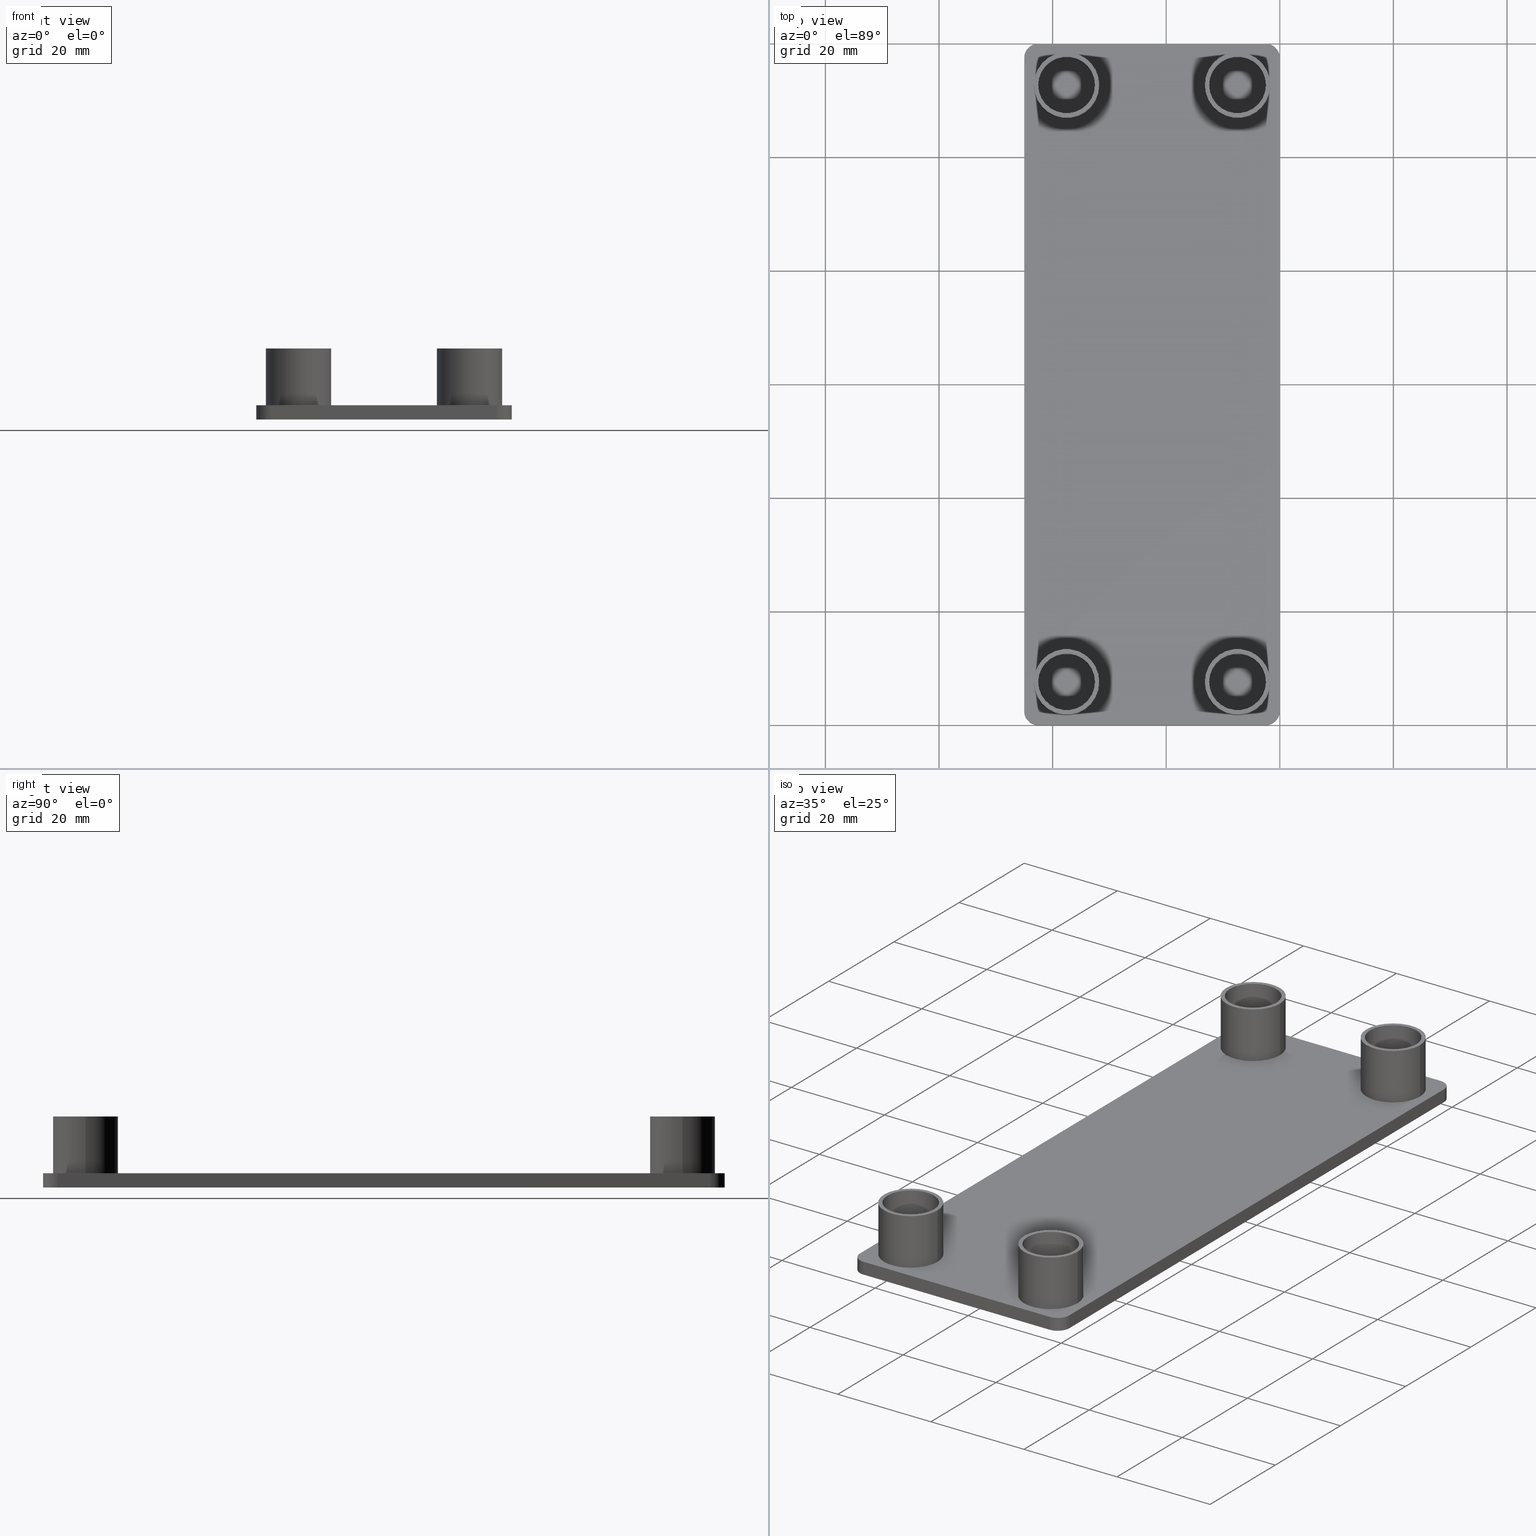
[diagram: canonical four-view strip — front | top / right | iso, engineering-drawing reading convention]
A machine part, canonical four-view strip (front | top / right | iso — engineering-drawing reading convention). The complete STEP part file that produces these views, byte-faithful:
ISO-10303-21;
HEADER;
/****************************************************************
 * Generated by software with PDE/Lib inside                    *
 * PDElib Version v4.4, created Mon 02/23/2004                  *
 * International Technegroup Inc. (www.iti-oh.com)              *
 ****************************************************************/
FILE_DESCRIPTION(('STEP AP203'),'2;1');
FILE_NAME('18.063.00.stp','2011-03-07T08:33:51',(''),(''),'2009.3.110','THINKDESIGN','');
FILE_SCHEMA(('CONFIG_CONTROL_DESIGN'));
ENDSEC;
DATA;
#2=CARTESIAN_POINT('',(-49.499975822407123,-72.000025978629537,0.0));
#3=DIRECTION('',(0.0,0.0,1.0));
#4=DIRECTION('',(1.0,0.0,0.0));
#5=AXIS2_PLACEMENT_3D('',#2,#3,#4);
#6=PLANE('',#5);
#7=CARTESIAN_POINT('',(-12.449998999949923,-52.550044499789919,0.0));
#8=VERTEX_POINT('',#7);
#9=CARTESIAN_POINT('',(-2.449998999989930,-52.550044499789919,0.0));
#10=VERTEX_POINT('',#9);
#11=CARTESIAN_POINT('',(-7.449998999969921,-52.550044499789919,0.0));
#12=DIRECTION('',(0.0,0.0,-1.0));
#13=DIRECTION('',(1.0,0.0,0.0));
#14=AXIS2_PLACEMENT_3D('',#11,#12,#13);
#15=CIRCLE('',#14,4.999999999980001);
#16=EDGE_CURVE('',#8,#10,#15,.T.);
#17=ORIENTED_EDGE('',*,*,#16,.F.);
#18=CARTESIAN_POINT('',(-7.449998999969921,-52.550044499789919,0.0));
#19=DIRECTION('',(0.0,0.0,-1.0));
#20=DIRECTION('',(1.0,0.0,0.0));
#21=AXIS2_PLACEMENT_3D('',#18,#19,#20);
#22=CIRCLE('',#21,4.999999999980001);
#23=EDGE_CURVE('',#10,#8,#22,.T.);
#24=ORIENTED_EDGE('',*,*,#23,.F.);
#25=EDGE_LOOP('',(#17,#24));
#26=FACE_OUTER_BOUND('',#25,.T.);
#27=ADVANCED_FACE('',(#26),#6,.T.);
#28=CARTESIAN_POINT('',(-49.499975822407123,-72.000025978629537,0.0));
#29=DIRECTION('',(0.0,0.0,1.0));
#30=DIRECTION('',(1.0,0.0,0.0));
#31=AXIS2_PLACEMENT_3D('',#28,#29,#30);
#32=PLANE('',#31);
#33=CARTESIAN_POINT('',(-42.549998999829320,-52.550044499789919,0.0));
#34=VERTEX_POINT('',#33);
#35=CARTESIAN_POINT('',(-32.549998999869331,-52.550044499789919,0.0));
#36=VERTEX_POINT('',#35);
#37=CARTESIAN_POINT('',(-37.549998999849322,-52.550044499789919,0.0));
#38=DIRECTION('',(0.0,0.0,-1.0));
#39=DIRECTION('',(1.0,0.0,0.0));
#40=AXIS2_PLACEMENT_3D('',#37,#38,#39);
#41=CIRCLE('',#40,4.999999999980001);
#42=EDGE_CURVE('',#34,#36,#41,.T.);
#43=ORIENTED_EDGE('',*,*,#42,.F.);
#44=CARTESIAN_POINT('',(-37.549998999849322,-52.550044499789919,0.0));
#45=DIRECTION('',(0.0,0.0,-1.0));
#46=DIRECTION('',(1.0,0.0,0.0));
#47=AXIS2_PLACEMENT_3D('',#44,#45,#46);
#48=CIRCLE('',#47,4.999999999980001);
#49=EDGE_CURVE('',#36,#34,#48,.T.);
#50=ORIENTED_EDGE('',*,*,#49,.F.);
#51=EDGE_LOOP('',(#43,#50));
#52=FACE_OUTER_BOUND('',#51,.T.);
#53=ADVANCED_FACE('',(#52),#32,.T.);
#54=CARTESIAN_POINT('',(-49.499975822407123,-72.000025978629537,0.0));
#55=DIRECTION('',(0.0,0.0,1.0));
#56=DIRECTION('',(1.0,0.0,0.0));
#57=AXIS2_PLACEMENT_3D('',#54,#55,#56);
#58=PLANE('',#57);
#59=CARTESIAN_POINT('',(-12.450000666619427,52.550000499789803,0.0));
#60=VERTEX_POINT('',#59);
#61=CARTESIAN_POINT('',(-2.450000666659435,52.550000499789803,0.0));
#62=VERTEX_POINT('',#61);
#63=CARTESIAN_POINT('',(-7.450000666639426,52.550000499789803,0.0));
#64=DIRECTION('',(0.0,0.0,-1.0));
#65=DIRECTION('',(1.0,0.0,0.0));
#66=AXIS2_PLACEMENT_3D('',#63,#64,#65);
#67=CIRCLE('',#66,4.999999999980001);
#68=EDGE_CURVE('',#60,#62,#67,.T.);
#69=ORIENTED_EDGE('',*,*,#68,.F.);
#70=CARTESIAN_POINT('',(-7.450000666639426,52.550000499789803,0.0));
#71=DIRECTION('',(0.0,0.0,-1.0));
#72=DIRECTION('',(1.0,0.0,0.0));
#73=AXIS2_PLACEMENT_3D('',#70,#71,#72);
#74=CIRCLE('',#73,4.999999999980001);
#75=EDGE_CURVE('',#62,#60,#74,.T.);
#76=ORIENTED_EDGE('',*,*,#75,.F.);
#77=EDGE_LOOP('',(#69,#76));
#78=FACE_OUTER_BOUND('',#77,.T.);
#79=ADVANCED_FACE('',(#78),#58,.T.);
#80=CARTESIAN_POINT('',(-49.499975822407123,-72.000025978629537,0.0));
#81=DIRECTION('',(0.0,0.0,1.0));
#82=DIRECTION('',(1.0,0.0,0.0));
#83=AXIS2_PLACEMENT_3D('',#80,#81,#82);
#84=PLANE('',#83);
#85=CARTESIAN_POINT('',(-42.550000666498825,52.550045499789803,0.0));
#86=VERTEX_POINT('',#85);
#87=CARTESIAN_POINT('',(-32.550000666538836,52.550045499789803,0.0));
#88=VERTEX_POINT('',#87);
#89=CARTESIAN_POINT('',(-37.550000666518827,52.550045499789803,0.0));
#90=DIRECTION('',(0.0,0.0,-1.0));
#91=DIRECTION('',(1.0,0.0,0.0));
#92=AXIS2_PLACEMENT_3D('',#89,#90,#91);
#93=CIRCLE('',#92,4.999999999980001);
#94=EDGE_CURVE('',#86,#88,#93,.T.);
#95=ORIENTED_EDGE('',*,*,#94,.F.);
#96=CARTESIAN_POINT('',(-37.550000666518827,52.550045499789803,0.0));
#97=DIRECTION('',(0.0,0.0,-1.0));
#98=DIRECTION('',(1.0,0.0,0.0));
#99=AXIS2_PLACEMENT_3D('',#96,#97,#98);
#100=CIRCLE('',#99,4.999999999980001);
#101=EDGE_CURVE('',#88,#86,#100,.T.);
#102=ORIENTED_EDGE('',*,*,#101,.F.);
#103=EDGE_LOOP('',(#95,#102));
#104=FACE_OUTER_BOUND('',#103,.T.);
#105=ADVANCED_FACE('',(#104),#84,.T.);
#106=CARTESIAN_POINT('',(-37.550000666518827,52.550045499789803,0.0));
#107=DIRECTION('',(0.0,0.0,1.0));
#108=DIRECTION('',(1.0,0.0,0.0));
#109=AXIS2_PLACEMENT_3D('',#106,#107,#108);
#110=CYLINDRICAL_SURFACE('',#109,5.749999999977001);
#111=CARTESIAN_POINT('',(-43.300000666495826,52.550045499789803,10.0));
#112=VERTEX_POINT('',#111);
#113=CARTESIAN_POINT('',(-31.800000666542019,52.550045499789803,10.0));
#114=VERTEX_POINT('',#113);
#115=CARTESIAN_POINT('',(-37.550000666518827,52.550045499789803,10.0));
#116=DIRECTION('',(0.0,0.0,1.0));
#117=DIRECTION('',(1.0,0.0,0.0));
#118=AXIS2_PLACEMENT_3D('',#115,#116,#117);
#119=CIRCLE('',#118,5.749999999977001);
#120=EDGE_CURVE('',#112,#114,#119,.T.);
#121=ORIENTED_EDGE('',*,*,#120,.F.);
#122=CARTESIAN_POINT('',(-37.550000666518827,52.550045499789803,10.0));
#123=DIRECTION('',(0.0,0.0,1.0));
#124=DIRECTION('',(1.0,0.0,0.0));
#125=AXIS2_PLACEMENT_3D('',#122,#123,#124);
#126=CIRCLE('',#125,5.749999999977001);
#127=EDGE_CURVE('',#114,#112,#126,.T.);
#128=ORIENTED_EDGE('',*,*,#127,.F.);
#129=CARTESIAN_POINT('',(-31.800000666542019,52.550045499789803,0.0));
#130=VERTEX_POINT('',#129);
#131=CARTESIAN_POINT('',(-31.800000666542019,52.550045499789803,0.0));
#132=DIRECTION('',(0.0,0.0,1.0));
#133=VECTOR('',#132,10.0);
#134=LINE('',#131,#133);
#135=EDGE_CURVE('',#130,#114,#134,.T.);
#136=ORIENTED_EDGE('',*,*,#135,.F.);
#137=CARTESIAN_POINT('',(-43.300000666495826,52.550045499789803,0.0));
#138=VERTEX_POINT('',#137);
#139=CARTESIAN_POINT('',(-37.550000666518827,52.550045499789803,0.0));
#140=DIRECTION('',(0.0,0.0,1.0));
#141=DIRECTION('',(1.0,0.0,0.0));
#142=AXIS2_PLACEMENT_3D('',#139,#140,#141);
#143=CIRCLE('',#142,5.749999999977001);
#144=EDGE_CURVE('',#130,#138,#143,.T.);
#145=ORIENTED_EDGE('',*,*,#144,.T.);
#146=CARTESIAN_POINT('',(-37.550000666518827,52.550045499789803,0.0));
#147=DIRECTION('',(0.0,0.0,1.0));
#148=DIRECTION('',(1.0,0.0,0.0));
#149=AXIS2_PLACEMENT_3D('',#146,#147,#148);
#150=CIRCLE('',#149,5.749999999977001);
#151=EDGE_CURVE('',#138,#130,#150,.T.);
#152=ORIENTED_EDGE('',*,*,#151,.T.);
#153=ORIENTED_EDGE('',*,*,#135,.T.);
#154=EDGE_LOOP('',(#121,#128,#136,#145,#152,#153));
#155=FACE_OUTER_BOUND('',#154,.T.);
#156=ADVANCED_FACE('',(#155),#110,.T.);
#157=CARTESIAN_POINT('',(-37.550000666518827,52.550045499789803,0.0));
#158=DIRECTION('',(0.0,0.0,-1.0));
#159=DIRECTION('',(1.0,-2.449294E-016,0.0));
#160=AXIS2_PLACEMENT_3D('',#157,#158,#159);
#161=CYLINDRICAL_SURFACE('',#160,4.999999999980001);
#162=CARTESIAN_POINT('',(-42.550000666498825,52.550045499789803,10.0));
#163=VERTEX_POINT('',#162);
#164=CARTESIAN_POINT('',(-32.550000666538836,52.550045499789803,10.0));
#165=VERTEX_POINT('',#164);
#166=CARTESIAN_POINT('',(-37.550000666518827,52.550045499789803,10.0));
#167=DIRECTION('',(0.0,0.0,-1.0));
#168=DIRECTION('',(1.0,0.0,0.0));
#169=AXIS2_PLACEMENT_3D('',#166,#167,#168);
#170=CIRCLE('',#169,4.999999999980001);
#171=EDGE_CURVE('',#163,#165,#170,.T.);
#172=ORIENTED_EDGE('',*,*,#171,.F.);
#173=CARTESIAN_POINT('',(-37.550000666518827,52.550045499789803,10.0));
#174=DIRECTION('',(0.0,0.0,-1.0));
#175=DIRECTION('',(1.0,0.0,0.0));
#176=AXIS2_PLACEMENT_3D('',#173,#174,#175);
#177=CIRCLE('',#176,4.999999999980001);
#178=EDGE_CURVE('',#165,#163,#177,.T.);
#179=ORIENTED_EDGE('',*,*,#178,.F.);
#180=CARTESIAN_POINT('',(-32.550000666538836,52.550045499789803,0.0));
#181=DIRECTION('',(0.0,0.0,1.0));
#182=VECTOR('',#181,10.0);
#183=LINE('',#180,#182);
#184=EDGE_CURVE('',#88,#165,#183,.T.);
#185=ORIENTED_EDGE('',*,*,#184,.F.);
#186=ORIENTED_EDGE('',*,*,#101,.T.);
#187=ORIENTED_EDGE('',*,*,#94,.T.);
#188=ORIENTED_EDGE('',*,*,#184,.T.);
#189=EDGE_LOOP('',(#172,#179,#185,#186,#187,#188));
#190=FACE_OUTER_BOUND('',#189,.T.);
#191=ADVANCED_FACE('',(#190),#161,.F.);
#192=CARTESIAN_POINT('',(-44.450005391058767,45.650040775278057,10.0));
#193=DIRECTION('',(0.0,0.0,1.0));
#194=DIRECTION('',(1.0,0.0,0.0));
#195=AXIS2_PLACEMENT_3D('',#192,#193,#194);
#196=PLANE('',#195);
#197=ORIENTED_EDGE('',*,*,#127,.T.);
#198=ORIENTED_EDGE('',*,*,#120,.T.);
#199=EDGE_LOOP('',(#197,#198));
#200=FACE_OUTER_BOUND('',#199,.T.);
#201=ORIENTED_EDGE('',*,*,#178,.T.);
#202=ORIENTED_EDGE('',*,*,#171,.T.);
#203=EDGE_LOOP('',(#201,#202));
#204=FACE_BOUND('',#203,.T.);
#205=ADVANCED_FACE('',(#200,#204),#196,.T.);
#206=CARTESIAN_POINT('',(-7.450000666639426,52.550000499789803,0.0));
#207=DIRECTION('',(0.0,0.0,1.0));
#208=DIRECTION('',(1.0,0.0,0.0));
#209=AXIS2_PLACEMENT_3D('',#206,#207,#208);
#210=CYLINDRICAL_SURFACE('',#209,5.749999999977001);
#211=CARTESIAN_POINT('',(-13.200000666616425,52.550000499789803,10.0));
#212=VERTEX_POINT('',#211);
#213=CARTESIAN_POINT('',(-1.700000666662618,52.550000499789803,10.0));
#214=VERTEX_POINT('',#213);
#215=CARTESIAN_POINT('',(-7.450000666639426,52.550000499789803,10.0));
#216=DIRECTION('',(0.0,0.0,1.0));
#217=DIRECTION('',(1.0,0.0,0.0));
#218=AXIS2_PLACEMENT_3D('',#215,#216,#217);
#219=CIRCLE('',#218,5.749999999977001);
#220=EDGE_CURVE('',#212,#214,#219,.T.);
#221=ORIENTED_EDGE('',*,*,#220,.F.);
#222=CARTESIAN_POINT('',(-7.450000666639426,52.550000499789803,10.0));
#223=DIRECTION('',(0.0,0.0,1.0));
#224=DIRECTION('',(1.0,0.0,0.0));
#225=AXIS2_PLACEMENT_3D('',#222,#223,#224);
#226=CIRCLE('',#225,5.749999999977001);
#227=EDGE_CURVE('',#214,#212,#226,.T.);
#228=ORIENTED_EDGE('',*,*,#227,.F.);
#229=CARTESIAN_POINT('',(-1.700000666662618,52.550000499789803,0.0));
#230=VERTEX_POINT('',#229);
#231=CARTESIAN_POINT('',(-1.700000666662618,52.550000499789803,0.0));
#232=DIRECTION('',(0.0,0.0,1.0));
#233=VECTOR('',#232,10.0);
#234=LINE('',#231,#233);
#235=EDGE_CURVE('',#230,#214,#234,.T.);
#236=ORIENTED_EDGE('',*,*,#235,.F.);
#237=CARTESIAN_POINT('',(-13.200000666616425,52.550000499789803,0.0));
#238=VERTEX_POINT('',#237);
#239=CARTESIAN_POINT('',(-7.450000666639426,52.550000499789803,0.0));
#240=DIRECTION('',(0.0,0.0,1.0));
#241=DIRECTION('',(1.0,0.0,0.0));
#242=AXIS2_PLACEMENT_3D('',#239,#240,#241);
#243=CIRCLE('',#242,5.749999999977001);
#244=EDGE_CURVE('',#230,#238,#243,.T.);
#245=ORIENTED_EDGE('',*,*,#244,.T.);
#246=CARTESIAN_POINT('',(-7.450000666639426,52.550000499789803,0.0));
#247=DIRECTION('',(0.0,0.0,1.0));
#248=DIRECTION('',(1.0,0.0,0.0));
#249=AXIS2_PLACEMENT_3D('',#246,#247,#248);
#250=CIRCLE('',#249,5.749999999977001);
#251=EDGE_CURVE('',#238,#230,#250,.T.);
#252=ORIENTED_EDGE('',*,*,#251,.T.);
#253=ORIENTED_EDGE('',*,*,#235,.T.);
#254=EDGE_LOOP('',(#221,#228,#236,#245,#252,#253));
#255=FACE_OUTER_BOUND('',#254,.T.);
#256=ADVANCED_FACE('',(#255),#210,.T.);
#257=CARTESIAN_POINT('',(-7.450000666639426,52.550000499789803,0.0));
#258=DIRECTION('',(0.0,0.0,-1.0));
#259=DIRECTION('',(1.0,-2.449294E-016,0.0));
#260=AXIS2_PLACEMENT_3D('',#257,#258,#259);
#261=CYLINDRICAL_SURFACE('',#260,4.999999999980001);
#262=CARTESIAN_POINT('',(-12.450000666619427,52.550000499789803,10.0));
#263=VERTEX_POINT('',#262);
#264=CARTESIAN_POINT('',(-2.450000666659435,52.550000499789803,10.0));
#265=VERTEX_POINT('',#264);
#266=CARTESIAN_POINT('',(-7.450000666639426,52.550000499789803,10.0));
#267=DIRECTION('',(0.0,0.0,-1.0));
#268=DIRECTION('',(1.0,0.0,0.0));
#269=AXIS2_PLACEMENT_3D('',#266,#267,#268);
#270=CIRCLE('',#269,4.999999999980001);
#271=EDGE_CURVE('',#263,#265,#270,.T.);
#272=ORIENTED_EDGE('',*,*,#271,.F.);
#273=CARTESIAN_POINT('',(-7.450000666639426,52.550000499789803,10.0));
#274=DIRECTION('',(0.0,0.0,-1.0));
#275=DIRECTION('',(1.0,0.0,0.0));
#276=AXIS2_PLACEMENT_3D('',#273,#274,#275);
#277=CIRCLE('',#276,4.999999999980001);
#278=EDGE_CURVE('',#265,#263,#277,.T.);
#279=ORIENTED_EDGE('',*,*,#278,.F.);
#280=CARTESIAN_POINT('',(-2.450000666659435,52.550000499789803,0.0));
#281=DIRECTION('',(0.0,0.0,1.0));
#282=VECTOR('',#281,10.0);
#283=LINE('',#280,#282);
#284=EDGE_CURVE('',#62,#265,#283,.T.);
#285=ORIENTED_EDGE('',*,*,#284,.F.);
#286=ORIENTED_EDGE('',*,*,#75,.T.);
#287=ORIENTED_EDGE('',*,*,#68,.T.);
#288=ORIENTED_EDGE('',*,*,#284,.T.);
#289=EDGE_LOOP('',(#272,#279,#285,#286,#287,#288));
#290=FACE_OUTER_BOUND('',#289,.T.);
#291=ADVANCED_FACE('',(#290),#261,.F.);
#292=CARTESIAN_POINT('',(-14.350005391179366,45.649995775278057,10.0));
#293=DIRECTION('',(0.0,0.0,1.0));
#294=DIRECTION('',(1.0,0.0,0.0));
#295=AXIS2_PLACEMENT_3D('',#292,#293,#294);
#296=PLANE('',#295);
#297=ORIENTED_EDGE('',*,*,#227,.T.);
#298=ORIENTED_EDGE('',*,*,#220,.T.);
#299=EDGE_LOOP('',(#297,#298));
#300=FACE_OUTER_BOUND('',#299,.T.);
#301=ORIENTED_EDGE('',*,*,#278,.T.);
#302=ORIENTED_EDGE('',*,*,#271,.T.);
#303=EDGE_LOOP('',(#301,#302));
#304=FACE_BOUND('',#303,.T.);
#305=ADVANCED_FACE('',(#300,#304),#296,.T.);
#306=CARTESIAN_POINT('',(-37.549998999849322,-52.550044499789919,0.0));
#307=DIRECTION('',(0.0,0.0,1.0));
#308=DIRECTION('',(1.0,0.0,0.0));
#309=AXIS2_PLACEMENT_3D('',#306,#307,#308);
#310=CYLINDRICAL_SURFACE('',#309,5.749999999977001);
#311=CARTESIAN_POINT('',(-43.299998999826322,-52.550044499789919,10.0));
#312=VERTEX_POINT('',#311);
#313=CARTESIAN_POINT('',(-31.799998999872514,-52.550044499789919,10.0));
#314=VERTEX_POINT('',#313);
#315=CARTESIAN_POINT('',(-37.549998999849322,-52.550044499789919,10.0));
#316=DIRECTION('',(0.0,0.0,1.0));
#317=DIRECTION('',(1.0,0.0,0.0));
#318=AXIS2_PLACEMENT_3D('',#315,#316,#317);
#319=CIRCLE('',#318,5.749999999977001);
#320=EDGE_CURVE('',#312,#314,#319,.T.);
#321=ORIENTED_EDGE('',*,*,#320,.F.);
#322=CARTESIAN_POINT('',(-37.549998999849322,-52.550044499789919,10.0));
#323=DIRECTION('',(0.0,0.0,1.0));
#324=DIRECTION('',(1.0,0.0,0.0));
#325=AXIS2_PLACEMENT_3D('',#322,#323,#324);
#326=CIRCLE('',#325,5.749999999977001);
#327=EDGE_CURVE('',#314,#312,#326,.T.);
#328=ORIENTED_EDGE('',*,*,#327,.F.);
#329=CARTESIAN_POINT('',(-31.799998999872514,-52.550044499789919,0.0));
#330=VERTEX_POINT('',#329);
#331=CARTESIAN_POINT('',(-31.799998999872514,-52.550044499789919,0.0));
#332=DIRECTION('',(0.0,0.0,1.0));
#333=VECTOR('',#332,10.0);
#334=LINE('',#331,#333);
#335=EDGE_CURVE('',#330,#314,#334,.T.);
#336=ORIENTED_EDGE('',*,*,#335,.F.);
#337=CARTESIAN_POINT('',(-43.299998999826322,-52.550044499789919,0.0));
#338=VERTEX_POINT('',#337);
#339=CARTESIAN_POINT('',(-37.549998999849322,-52.550044499789919,0.0));
#340=DIRECTION('',(0.0,0.0,1.0));
#341=DIRECTION('',(1.0,0.0,0.0));
#342=AXIS2_PLACEMENT_3D('',#339,#340,#341);
#343=CIRCLE('',#342,5.749999999977001);
#344=EDGE_CURVE('',#330,#338,#343,.T.);
#345=ORIENTED_EDGE('',*,*,#344,.T.);
#346=CARTESIAN_POINT('',(-37.549998999849322,-52.550044499789919,0.0));
#347=DIRECTION('',(0.0,0.0,1.0));
#348=DIRECTION('',(1.0,0.0,0.0));
#349=AXIS2_PLACEMENT_3D('',#346,#347,#348);
#350=CIRCLE('',#349,5.749999999977001);
#351=EDGE_CURVE('',#338,#330,#350,.T.);
#352=ORIENTED_EDGE('',*,*,#351,.T.);
#353=ORIENTED_EDGE('',*,*,#335,.T.);
#354=EDGE_LOOP('',(#321,#328,#336,#345,#352,#353));
#355=FACE_OUTER_BOUND('',#354,.T.);
#356=ADVANCED_FACE('',(#355),#310,.T.);
#357=CARTESIAN_POINT('',(-37.549998999849322,-52.550044499789919,0.0));
#358=DIRECTION('',(0.0,0.0,-1.0));
#359=DIRECTION('',(1.0,-2.449294E-016,0.0));
#360=AXIS2_PLACEMENT_3D('',#357,#358,#359);
#361=CYLINDRICAL_SURFACE('',#360,4.999999999980001);
#362=CARTESIAN_POINT('',(-42.549998999829320,-52.550044499789919,10.0));
#363=VERTEX_POINT('',#362);
#364=CARTESIAN_POINT('',(-32.549998999869331,-52.550044499789919,10.0));
#365=VERTEX_POINT('',#364);
#366=CARTESIAN_POINT('',(-37.549998999849322,-52.550044499789919,10.0));
#367=DIRECTION('',(0.0,0.0,-1.0));
#368=DIRECTION('',(1.0,0.0,0.0));
#369=AXIS2_PLACEMENT_3D('',#366,#367,#368);
#370=CIRCLE('',#369,4.999999999980001);
#371=EDGE_CURVE('',#363,#365,#370,.T.);
#372=ORIENTED_EDGE('',*,*,#371,.F.);
#373=CARTESIAN_POINT('',(-37.549998999849322,-52.550044499789919,10.0));
#374=DIRECTION('',(0.0,0.0,-1.0));
#375=DIRECTION('',(1.0,0.0,0.0));
#376=AXIS2_PLACEMENT_3D('',#373,#374,#375);
#377=CIRCLE('',#376,4.999999999980001);
#378=EDGE_CURVE('',#365,#363,#377,.T.);
#379=ORIENTED_EDGE('',*,*,#378,.F.);
#380=CARTESIAN_POINT('',(-32.549998999869331,-52.550044499789919,0.0));
#381=DIRECTION('',(0.0,0.0,1.0));
#382=VECTOR('',#381,10.0);
#383=LINE('',#380,#382);
#384=EDGE_CURVE('',#36,#365,#383,.T.);
#385=ORIENTED_EDGE('',*,*,#384,.F.);
#386=ORIENTED_EDGE('',*,*,#49,.T.);
#387=ORIENTED_EDGE('',*,*,#42,.T.);
#388=ORIENTED_EDGE('',*,*,#384,.T.);
#389=EDGE_LOOP('',(#372,#379,#385,#386,#387,#388));
#390=FACE_OUTER_BOUND('',#389,.T.);
#391=ADVANCED_FACE('',(#390),#361,.F.);
#392=CARTESIAN_POINT('',(-44.450003724389262,-59.450049224327358,10.0));
#393=DIRECTION('',(0.0,0.0,1.0));
#394=DIRECTION('',(1.0,0.0,0.0));
#395=AXIS2_PLACEMENT_3D('',#392,#393,#394);
#396=PLANE('',#395);
#397=ORIENTED_EDGE('',*,*,#327,.T.);
#398=ORIENTED_EDGE('',*,*,#320,.T.);
#399=EDGE_LOOP('',(#397,#398));
#400=FACE_OUTER_BOUND('',#399,.T.);
#401=ORIENTED_EDGE('',*,*,#378,.T.);
#402=ORIENTED_EDGE('',*,*,#371,.T.);
#403=EDGE_LOOP('',(#401,#402));
#404=FACE_BOUND('',#403,.T.);
#405=ADVANCED_FACE('',(#400,#404),#396,.T.);
#406=CARTESIAN_POINT('',(-7.449998999969921,-52.550044499789919,0.0));
#407=DIRECTION('',(0.0,0.0,1.0));
#408=DIRECTION('',(1.0,0.0,0.0));
#409=AXIS2_PLACEMENT_3D('',#406,#407,#408);
#410=CYLINDRICAL_SURFACE('',#409,5.749999999977001);
#411=CARTESIAN_POINT('',(-13.199998999946921,-52.550044499789919,10.0));
#412=VERTEX_POINT('',#411);
#413=CARTESIAN_POINT('',(-1.699998999993113,-52.550044499789919,10.0));
#414=VERTEX_POINT('',#413);
#415=CARTESIAN_POINT('',(-7.449998999969921,-52.550044499789919,10.0));
#416=DIRECTION('',(0.0,0.0,1.0));
#417=DIRECTION('',(1.0,0.0,0.0));
#418=AXIS2_PLACEMENT_3D('',#415,#416,#417);
#419=CIRCLE('',#418,5.749999999977001);
#420=EDGE_CURVE('',#412,#414,#419,.T.);
#421=ORIENTED_EDGE('',*,*,#420,.F.);
#422=CARTESIAN_POINT('',(-7.449998999969921,-52.550044499789919,10.0));
#423=DIRECTION('',(0.0,0.0,1.0));
#424=DIRECTION('',(1.0,0.0,0.0));
#425=AXIS2_PLACEMENT_3D('',#422,#423,#424);
#426=CIRCLE('',#425,5.749999999977001);
#427=EDGE_CURVE('',#414,#412,#426,.T.);
#428=ORIENTED_EDGE('',*,*,#427,.F.);
#429=CARTESIAN_POINT('',(-1.699998999993113,-52.550044499789919,0.0));
#430=VERTEX_POINT('',#429);
#431=CARTESIAN_POINT('',(-1.699998999993113,-52.550044499789919,0.0));
#432=DIRECTION('',(0.0,0.0,1.0));
#433=VECTOR('',#432,10.0);
#434=LINE('',#431,#433);
#435=EDGE_CURVE('',#430,#414,#434,.T.);
#436=ORIENTED_EDGE('',*,*,#435,.F.);
#437=CARTESIAN_POINT('',(-13.199998999946921,-52.550044499789919,0.0));
#438=VERTEX_POINT('',#437);
#439=CARTESIAN_POINT('',(-7.449998999969921,-52.550044499789919,0.0));
#440=DIRECTION('',(0.0,0.0,1.0));
#441=DIRECTION('',(1.0,0.0,0.0));
#442=AXIS2_PLACEMENT_3D('',#439,#440,#441);
#443=CIRCLE('',#442,5.749999999977001);
#444=EDGE_CURVE('',#430,#438,#443,.T.);
#445=ORIENTED_EDGE('',*,*,#444,.T.);
#446=CARTESIAN_POINT('',(-7.449998999969921,-52.550044499789919,0.0));
#447=DIRECTION('',(0.0,0.0,1.0));
#448=DIRECTION('',(1.0,0.0,0.0));
#449=AXIS2_PLACEMENT_3D('',#446,#447,#448);
#450=CIRCLE('',#449,5.749999999977001);
#451=EDGE_CURVE('',#438,#430,#450,.T.);
#452=ORIENTED_EDGE('',*,*,#451,.T.);
#453=ORIENTED_EDGE('',*,*,#435,.T.);
#454=EDGE_LOOP('',(#421,#428,#436,#445,#452,#453));
#455=FACE_OUTER_BOUND('',#454,.T.);
#456=ADVANCED_FACE('',(#455),#410,.T.);
#457=CARTESIAN_POINT('',(-7.449998999969921,-52.550044499789919,0.0));
#458=DIRECTION('',(0.0,0.0,-1.0));
#459=DIRECTION('',(1.0,-2.449294E-016,0.0));
#460=AXIS2_PLACEMENT_3D('',#457,#458,#459);
#461=CYLINDRICAL_SURFACE('',#460,4.999999999980001);
#462=CARTESIAN_POINT('',(-12.449998999949923,-52.550044499789919,10.0));
#463=VERTEX_POINT('',#462);
#464=CARTESIAN_POINT('',(-2.449998999989930,-52.550044499789919,10.0));
#465=VERTEX_POINT('',#464);
#466=CARTESIAN_POINT('',(-7.449998999969921,-52.550044499789919,10.0));
#467=DIRECTION('',(0.0,0.0,-1.0));
#468=DIRECTION('',(1.0,0.0,0.0));
#469=AXIS2_PLACEMENT_3D('',#466,#467,#468);
#470=CIRCLE('',#469,4.999999999980001);
#471=EDGE_CURVE('',#463,#465,#470,.T.);
#472=ORIENTED_EDGE('',*,*,#471,.F.);
#473=CARTESIAN_POINT('',(-7.449998999969921,-52.550044499789919,10.0));
#474=DIRECTION('',(0.0,0.0,-1.0));
#475=DIRECTION('',(1.0,0.0,0.0));
#476=AXIS2_PLACEMENT_3D('',#473,#474,#475);
#477=CIRCLE('',#476,4.999999999980001);
#478=EDGE_CURVE('',#465,#463,#477,.T.);
#479=ORIENTED_EDGE('',*,*,#478,.F.);
#480=CARTESIAN_POINT('',(-2.449998999989930,-52.550044499789919,0.0));
#481=DIRECTION('',(0.0,0.0,1.0));
#482=VECTOR('',#481,10.0);
#483=LINE('',#480,#482);
#484=EDGE_CURVE('',#10,#465,#483,.T.);
#485=ORIENTED_EDGE('',*,*,#484,.F.);
#486=ORIENTED_EDGE('',*,*,#23,.T.);
#487=ORIENTED_EDGE('',*,*,#16,.T.);
#488=ORIENTED_EDGE('',*,*,#484,.T.);
#489=EDGE_LOOP('',(#472,#479,#485,#486,#487,#488));
#490=FACE_OUTER_BOUND('',#489,.T.);
#491=ADVANCED_FACE('',(#490),#461,.F.);
#492=CARTESIAN_POINT('',(-14.350003724509861,-59.450049224327358,10.0));
#493=DIRECTION('',(0.0,0.0,1.0));
#494=DIRECTION('',(1.0,0.0,0.0));
#495=AXIS2_PLACEMENT_3D('',#492,#493,#494);
#496=PLANE('',#495);
#497=ORIENTED_EDGE('',*,*,#427,.T.);
#498=ORIENTED_EDGE('',*,*,#420,.T.);
#499=EDGE_LOOP('',(#497,#498));
#500=FACE_OUTER_BOUND('',#499,.T.);
#501=ORIENTED_EDGE('',*,*,#478,.T.);
#502=ORIENTED_EDGE('',*,*,#471,.T.);
#503=EDGE_LOOP('',(#501,#502));
#504=FACE_BOUND('',#503,.T.);
#505=ADVANCED_FACE('',(#500,#504),#496,.T.);
#506=CARTESIAN_POINT('',(-49.499975822407123,-72.000025978629537,-2.500000000000000));
#507=DIRECTION('',(0.0,0.0,1.0));
#508=DIRECTION('',(1.0,0.0,0.0));
#509=AXIS2_PLACEMENT_3D('',#506,#507,#508);
#510=PLANE('',#509);
#511=CARTESIAN_POINT('',(-42.499953999819809,-60.000000499759835,-2.500000000000000));
#512=VERTEX_POINT('',#511);
#513=CARTESIAN_POINT('',(-44.999953999819809,-57.500000499759835,-2.500000000000000));
#514=VERTEX_POINT('',#513);
#515=CARTESIAN_POINT('',(-42.499953999819809,-57.500000499759835,-2.500000000000000));
#516=DIRECTION('',(0.0,0.0,-1.0));
#517=DIRECTION('',(0.0,-1.0,0.0));
#518=AXIS2_PLACEMENT_3D('',#515,#516,#517);
#519=CIRCLE('',#518,2.500000000000000);
#520=EDGE_CURVE('',#512,#514,#519,.T.);
#521=ORIENTED_EDGE('',*,*,#520,.T.);
#522=CARTESIAN_POINT('',(-44.999953999819809,57.500000499760063,-2.500000000000000));
#523=VERTEX_POINT('',#522);
#524=CARTESIAN_POINT('',(-44.999953999819809,57.500000499760063,-2.500000000000000));
#525=DIRECTION('',(0.0,-1.0,0.0));
#526=VECTOR('',#525,115.000000999519900);
#527=LINE('',#524,#526);
#528=EDGE_CURVE('',#523,#514,#527,.T.);
#529=ORIENTED_EDGE('',*,*,#528,.F.);
#530=CARTESIAN_POINT('',(-42.499953999819809,60.000000499760063,-2.500000000000000));
#531=VERTEX_POINT('',#530);
#532=CARTESIAN_POINT('',(-42.499953999819809,57.500000499760063,-2.500000000000000));
#533=DIRECTION('',(0.0,0.0,-1.0));
#534=DIRECTION('',(-1.0,0.0,0.0));
#535=AXIS2_PLACEMENT_3D('',#532,#533,#534);
#536=CIRCLE('',#535,2.500000000000000);
#537=EDGE_CURVE('',#523,#531,#536,.T.);
#538=ORIENTED_EDGE('',*,*,#537,.T.);
#539=CARTESIAN_POINT('',(-2.500000000000000,60.000000499760063,-2.500000000000000));
#540=VERTEX_POINT('',#539);
#541=CARTESIAN_POINT('',(-2.500000000000000,60.000000499760063,-2.500000000000000));
#542=DIRECTION('',(-1.0,0.0,0.0));
#543=VECTOR('',#542,39.999953999819809);
#544=LINE('',#541,#543);
#545=EDGE_CURVE('',#540,#531,#544,.T.);
#546=ORIENTED_EDGE('',*,*,#545,.F.);
#547=CARTESIAN_POINT('',(0.0,57.500000499760063,-2.500000000000000));
#548=VERTEX_POINT('',#547);
#549=CARTESIAN_POINT('',(-2.500000000000000,57.500000499760063,-2.500000000000000));
#550=DIRECTION('',(0.0,0.0,-1.0));
#551=DIRECTION('',(0.0,1.0,0.0));
#552=AXIS2_PLACEMENT_3D('',#549,#550,#551);
#553=CIRCLE('',#552,2.500000000000000);
#554=EDGE_CURVE('',#540,#548,#553,.T.);
#555=ORIENTED_EDGE('',*,*,#554,.T.);
#556=CARTESIAN_POINT('',(0.0,-57.500000499759835,-2.500000000000000));
#557=VERTEX_POINT('',#556);
#558=CARTESIAN_POINT('',(0.0,-57.500000499759835,-2.500000000000000));
#559=DIRECTION('',(0.0,1.0,0.0));
#560=VECTOR('',#559,115.000000999519900);
#561=LINE('',#558,#560);
#562=EDGE_CURVE('',#557,#548,#561,.T.);
#563=ORIENTED_EDGE('',*,*,#562,.F.);
#564=CARTESIAN_POINT('',(-2.500000000000000,-60.000000499759835,-2.500000000000000));
#565=VERTEX_POINT('',#564);
#566=CARTESIAN_POINT('',(-2.500000000000000,-57.500000499759835,-2.500000000000000));
#567=DIRECTION('',(0.0,0.0,-1.0));
#568=DIRECTION('',(1.0,0.0,0.0));
#569=AXIS2_PLACEMENT_3D('',#566,#567,#568);
#570=CIRCLE('',#569,2.500000000000000);
#571=EDGE_CURVE('',#557,#565,#570,.T.);
#572=ORIENTED_EDGE('',*,*,#571,.T.);
#573=CARTESIAN_POINT('',(-42.499953999819809,-60.000000499759835,-2.500000000000000));
#574=DIRECTION('',(1.0,0.0,0.0));
#575=VECTOR('',#574,39.999953999819809);
#576=LINE('',#573,#575);
#577=EDGE_CURVE('',#512,#565,#576,.T.);
#578=ORIENTED_EDGE('',*,*,#577,.F.);
#579=EDGE_LOOP('',(#521,#529,#538,#546,#555,#563,#572,#578));
#580=FACE_OUTER_BOUND('',#579,.T.);
#581=ADVANCED_FACE('',(#580),#510,.F.);
#582=CARTESIAN_POINT('',(-42.499953999819809,57.500000499760063,0.0));
#583=DIRECTION('',(0.0,0.0,-1.0));
#584=DIRECTION('',(-1.0,0.0,0.0));
#585=AXIS2_PLACEMENT_3D('',#582,#583,#584);
#586=CYLINDRICAL_SURFACE('',#585,2.500000000000000);
#587=CARTESIAN_POINT('',(-44.999953999819809,57.500000499760063,0.0));
#588=VERTEX_POINT('',#587);
#589=CARTESIAN_POINT('',(-42.499953999819809,60.000000499760063,0.0));
#590=VERTEX_POINT('',#589);
#591=CARTESIAN_POINT('',(-42.499953999819809,57.500000499760063,0.0));
#592=DIRECTION('',(0.0,0.0,-1.0));
#593=DIRECTION('',(-1.0,0.0,0.0));
#594=AXIS2_PLACEMENT_3D('',#591,#592,#593);
#595=CIRCLE('',#594,2.500000000000000);
#596=EDGE_CURVE('',#588,#590,#595,.T.);
#597=ORIENTED_EDGE('',*,*,#596,.T.);
#598=CARTESIAN_POINT('',(-42.499953999819809,60.000000499760063,0.0));
#599=DIRECTION('',(0.0,0.0,-1.0));
#600=VECTOR('',#599,2.500000000000000);
#601=LINE('',#598,#600);
#602=EDGE_CURVE('',#590,#531,#601,.T.);
#603=ORIENTED_EDGE('',*,*,#602,.T.);
#604=ORIENTED_EDGE('',*,*,#537,.F.);
#605=CARTESIAN_POINT('',(-44.999953999819809,57.500000499760063,0.0));
#606=DIRECTION('',(0.0,0.0,-1.0));
#607=VECTOR('',#606,2.500000000000000);
#608=LINE('',#605,#607);
#609=EDGE_CURVE('',#588,#523,#608,.T.);
#610=ORIENTED_EDGE('',*,*,#609,.F.);
#611=EDGE_LOOP('',(#597,#603,#604,#610));
#612=FACE_OUTER_BOUND('',#611,.T.);
#613=ADVANCED_FACE('',(#612),#586,.T.);
#614=CARTESIAN_POINT('',(-49.499975822407123,-72.000025978629537,0.0));
#615=DIRECTION('',(0.0,0.0,1.0));
#616=DIRECTION('',(1.0,0.0,0.0));
#617=AXIS2_PLACEMENT_3D('',#614,#615,#616);
#618=PLANE('',#617);
#619=CARTESIAN_POINT('',(-42.499953999819809,-60.000000499759835,0.0));
#620=VERTEX_POINT('',#619);
#621=CARTESIAN_POINT('',(-2.500000000000000,-60.000000499759835,0.0));
#622=VERTEX_POINT('',#621);
#623=CARTESIAN_POINT('',(-42.499953999819809,-60.000000499759835,0.0));
#624=DIRECTION('',(1.0,0.0,0.0));
#625=VECTOR('',#624,39.999953999819809);
#626=LINE('',#623,#625);
#627=EDGE_CURVE('',#620,#622,#626,.T.);
#628=ORIENTED_EDGE('',*,*,#627,.T.);
#629=CARTESIAN_POINT('',(0.0,-57.500000499759835,0.0));
#630=VERTEX_POINT('',#629);
#631=CARTESIAN_POINT('',(-2.500000000000000,-57.500000499759835,0.0));
#632=DIRECTION('',(0.0,0.0,-1.0));
#633=DIRECTION('',(1.0,0.0,0.0));
#634=AXIS2_PLACEMENT_3D('',#631,#632,#633);
#635=CIRCLE('',#634,2.500000000000000);
#636=EDGE_CURVE('',#630,#622,#635,.T.);
#637=ORIENTED_EDGE('',*,*,#636,.F.);
#638=CARTESIAN_POINT('',(0.0,57.500000499760063,0.0));
#639=VERTEX_POINT('',#638);
#640=CARTESIAN_POINT('',(0.0,-57.500000499759835,0.0));
#641=DIRECTION('',(0.0,1.0,0.0));
#642=VECTOR('',#641,115.000000999519900);
#643=LINE('',#640,#642);
#644=EDGE_CURVE('',#630,#639,#643,.T.);
#645=ORIENTED_EDGE('',*,*,#644,.T.);
#646=CARTESIAN_POINT('',(-2.500000000000000,60.000000499760063,0.0));
#647=VERTEX_POINT('',#646);
#648=CARTESIAN_POINT('',(-2.500000000000000,57.500000499760063,0.0));
#649=DIRECTION('',(0.0,0.0,-1.0));
#650=DIRECTION('',(0.0,1.0,0.0));
#651=AXIS2_PLACEMENT_3D('',#648,#649,#650);
#652=CIRCLE('',#651,2.500000000000000);
#653=EDGE_CURVE('',#647,#639,#652,.T.);
#654=ORIENTED_EDGE('',*,*,#653,.F.);
#655=CARTESIAN_POINT('',(-2.500000000000000,60.000000499760063,0.0));
#656=DIRECTION('',(-1.0,0.0,0.0));
#657=VECTOR('',#656,39.999953999819809);
#658=LINE('',#655,#657);
#659=EDGE_CURVE('',#647,#590,#658,.T.);
#660=ORIENTED_EDGE('',*,*,#659,.T.);
#661=ORIENTED_EDGE('',*,*,#596,.F.);
#662=CARTESIAN_POINT('',(-44.999953999819809,-57.500000499759835,0.0));
#663=VERTEX_POINT('',#662);
#664=CARTESIAN_POINT('',(-44.999953999819809,57.500000499760063,0.0));
#665=DIRECTION('',(0.0,-1.0,0.0));
#666=VECTOR('',#665,115.000000999519900);
#667=LINE('',#664,#666);
#668=EDGE_CURVE('',#588,#663,#667,.T.);
#669=ORIENTED_EDGE('',*,*,#668,.T.);
#670=CARTESIAN_POINT('',(-42.499953999819809,-57.500000499759835,0.0));
#671=DIRECTION('',(0.0,0.0,-1.0));
#672=DIRECTION('',(0.0,-1.0,0.0));
#673=AXIS2_PLACEMENT_3D('',#670,#671,#672);
#674=CIRCLE('',#673,2.500000000000000);
#675=EDGE_CURVE('',#620,#663,#674,.T.);
#676=ORIENTED_EDGE('',*,*,#675,.F.);
#677=EDGE_LOOP('',(#628,#637,#645,#654,#660,#661,#669,#676));
#678=FACE_OUTER_BOUND('',#677,.T.);
#679=ORIENTED_EDGE('',*,*,#151,.F.);
#680=ORIENTED_EDGE('',*,*,#144,.F.);
#681=EDGE_LOOP('',(#679,#680));
#682=FACE_BOUND('',#681,.T.);
#683=ORIENTED_EDGE('',*,*,#251,.F.);
#684=ORIENTED_EDGE('',*,*,#244,.F.);
#685=EDGE_LOOP('',(#683,#684));
#686=FACE_BOUND('',#685,.T.);
#687=ORIENTED_EDGE('',*,*,#351,.F.);
#688=ORIENTED_EDGE('',*,*,#344,.F.);
#689=EDGE_LOOP('',(#687,#688));
#690=FACE_BOUND('',#689,.T.);
#691=ORIENTED_EDGE('',*,*,#451,.F.);
#692=ORIENTED_EDGE('',*,*,#444,.F.);
#693=EDGE_LOOP('',(#691,#692));
#694=FACE_BOUND('',#693,.T.);
#695=ADVANCED_FACE('',(#678,#682,#686,#690,#694),#618,.T.);
#696=CARTESIAN_POINT('',(-2.500000000000000,57.500000499760063,0.0));
#697=DIRECTION('',(0.0,0.0,-1.0));
#698=DIRECTION('',(0.0,1.0,0.0));
#699=AXIS2_PLACEMENT_3D('',#696,#697,#698);
#700=CYLINDRICAL_SURFACE('',#699,2.500000000000000);
#701=ORIENTED_EDGE('',*,*,#653,.T.);
#702=CARTESIAN_POINT('',(0.0,57.500000499760063,0.0));
#703=DIRECTION('',(0.0,0.0,-1.0));
#704=VECTOR('',#703,2.500000000000000);
#705=LINE('',#702,#704);
#706=EDGE_CURVE('',#639,#548,#705,.T.);
#707=ORIENTED_EDGE('',*,*,#706,.T.);
#708=ORIENTED_EDGE('',*,*,#554,.F.);
#709=CARTESIAN_POINT('',(-2.500000000000000,60.000000499760063,0.0));
#710=DIRECTION('',(0.0,0.0,-1.0));
#711=VECTOR('',#710,2.500000000000000);
#712=LINE('',#709,#711);
#713=EDGE_CURVE('',#647,#540,#712,.T.);
#714=ORIENTED_EDGE('',*,*,#713,.F.);
#715=EDGE_LOOP('',(#701,#707,#708,#714));
#716=FACE_OUTER_BOUND('',#715,.T.);
#717=ADVANCED_FACE('',(#716),#700,.T.);
#718=CARTESIAN_POINT('',(-42.499953999819809,-57.500000499759835,0.0));
#719=DIRECTION('',(0.0,0.0,-1.0));
#720=DIRECTION('',(0.0,-1.0,0.0));
#721=AXIS2_PLACEMENT_3D('',#718,#719,#720);
#722=CYLINDRICAL_SURFACE('',#721,2.500000000000000);
#723=ORIENTED_EDGE('',*,*,#675,.T.);
#724=CARTESIAN_POINT('',(-44.999953999819809,-57.500000499759835,0.0));
#725=DIRECTION('',(0.0,0.0,-1.0));
#726=VECTOR('',#725,2.500000000000000);
#727=LINE('',#724,#726);
#728=EDGE_CURVE('',#663,#514,#727,.T.);
#729=ORIENTED_EDGE('',*,*,#728,.T.);
#730=ORIENTED_EDGE('',*,*,#520,.F.);
#731=CARTESIAN_POINT('',(-42.499953999819809,-60.000000499759835,0.0));
#732=DIRECTION('',(0.0,0.0,-1.0));
#733=VECTOR('',#732,2.500000000000000);
#734=LINE('',#731,#733);
#735=EDGE_CURVE('',#620,#512,#734,.T.);
#736=ORIENTED_EDGE('',*,*,#735,.F.);
#737=EDGE_LOOP('',(#723,#729,#730,#736));
#738=FACE_OUTER_BOUND('',#737,.T.);
#739=ADVANCED_FACE('',(#738),#722,.T.);
#740=CARTESIAN_POINT('',(-2.500000000000000,-57.500000499759835,0.0));
#741=DIRECTION('',(0.0,0.0,-1.0));
#742=DIRECTION('',(1.0,0.0,0.0));
#743=AXIS2_PLACEMENT_3D('',#740,#741,#742);
#744=CYLINDRICAL_SURFACE('',#743,2.500000000000000);
#745=ORIENTED_EDGE('',*,*,#636,.T.);
#746=CARTESIAN_POINT('',(-2.500000000000000,-60.000000499759835,0.0));
#747=DIRECTION('',(0.0,0.0,-1.0));
#748=VECTOR('',#747,2.500000000000000);
#749=LINE('',#746,#748);
#750=EDGE_CURVE('',#622,#565,#749,.T.);
#751=ORIENTED_EDGE('',*,*,#750,.T.);
#752=ORIENTED_EDGE('',*,*,#571,.F.);
#753=CARTESIAN_POINT('',(0.0,-57.500000499759835,0.0));
#754=DIRECTION('',(0.0,0.0,-1.0));
#755=VECTOR('',#754,2.500000000000000);
#756=LINE('',#753,#755);
#757=EDGE_CURVE('',#630,#557,#756,.T.);
#758=ORIENTED_EDGE('',*,*,#757,.F.);
#759=EDGE_LOOP('',(#745,#751,#752,#758));
#760=FACE_OUTER_BOUND('',#759,.T.);
#761=ADVANCED_FACE('',(#760),#744,.T.);
#762=CARTESIAN_POINT('',(0.0,60.000000499760063,0.0));
#763=DIRECTION('',(0.0,-1.0,0.0));
#764=DIRECTION('',(-1.0,0.0,0.0));
#765=AXIS2_PLACEMENT_3D('',#762,#763,#764);
#766=PLANE('',#765);
#767=ORIENTED_EDGE('',*,*,#713,.T.);
#768=ORIENTED_EDGE('',*,*,#545,.T.);
#769=ORIENTED_EDGE('',*,*,#602,.F.);
#770=ORIENTED_EDGE('',*,*,#659,.F.);
#771=EDGE_LOOP('',(#767,#768,#769,#770));
#772=FACE_OUTER_BOUND('',#771,.T.);
#773=ADVANCED_FACE('',(#772),#766,.F.);
#774=CARTESIAN_POINT('',(-44.999953999819809,60.000000499760063,0.0));
#775=DIRECTION('',(1.0,0.0,0.0));
#776=DIRECTION('',(0.0,-1.0,0.0));
#777=AXIS2_PLACEMENT_3D('',#774,#775,#776);
#778=PLANE('',#777);
#779=ORIENTED_EDGE('',*,*,#668,.F.);
#780=ORIENTED_EDGE('',*,*,#609,.T.);
#781=ORIENTED_EDGE('',*,*,#528,.T.);
#782=ORIENTED_EDGE('',*,*,#728,.F.);
#783=EDGE_LOOP('',(#779,#780,#781,#782));
#784=FACE_OUTER_BOUND('',#783,.T.);
#785=ADVANCED_FACE('',(#784),#778,.F.);
#786=CARTESIAN_POINT('',(0.0,-60.000000499759835,0.0));
#787=DIRECTION('',(-1.0,0.0,0.0));
#788=DIRECTION('',(0.0,1.0,0.0));
#789=AXIS2_PLACEMENT_3D('',#786,#787,#788);
#790=PLANE('',#789);
#791=ORIENTED_EDGE('',*,*,#757,.T.);
#792=ORIENTED_EDGE('',*,*,#562,.T.);
#793=ORIENTED_EDGE('',*,*,#706,.F.);
#794=ORIENTED_EDGE('',*,*,#644,.F.);
#795=EDGE_LOOP('',(#791,#792,#793,#794));
#796=FACE_OUTER_BOUND('',#795,.T.);
#797=ADVANCED_FACE('',(#796),#790,.F.);
#798=CARTESIAN_POINT('',(-44.999953999819809,-60.000000499759835,0.0));
#799=DIRECTION('',(0.0,1.0,0.0));
#800=DIRECTION('',(1.0,0.0,0.0));
#801=AXIS2_PLACEMENT_3D('',#798,#799,#800);
#802=PLANE('',#801);
#803=ORIENTED_EDGE('',*,*,#627,.F.);
#804=ORIENTED_EDGE('',*,*,#735,.T.);
#805=ORIENTED_EDGE('',*,*,#577,.T.);
#806=ORIENTED_EDGE('',*,*,#750,.F.);
#807=EDGE_LOOP('',(#803,#804,#805,#806));
#808=FACE_OUTER_BOUND('',#807,.T.);
#809=ADVANCED_FACE('',(#808),#802,.F.);
#810=CLOSED_SHELL('',(#27,#53,#79,#105,#156,#191,#205,#256,#291,#305,#356,#391,#405,#456,#491,#505,#581,#613,#695,#717,#739,#761,#773,#785,#797,#809));
#811=MANIFOLD_SOLID_BREP('',#810);
#817=(NAMED_UNIT(*)PLANE_ANGLE_UNIT()SI_UNIT($,.RADIAN.));
#818=DIMENSIONAL_EXPONENTS(0.0,0.0,0.0,0.0,0.0,0.0,0.0);
#819=PLANE_ANGLE_MEASURE_WITH_UNIT(PLANE_ANGLE_MEASURE(0.017453292500000),#817);
#823=(CONVERSION_BASED_UNIT('DEGREE',#819)NAMED_UNIT(#818)PLANE_ANGLE_UNIT());
#827=(NAMED_UNIT(*)SI_UNIT($,.STERADIAN.)SOLID_ANGLE_UNIT());
#831=(LENGTH_UNIT()NAMED_UNIT(*)SI_UNIT(.MILLI.,.METRE.));
#833=UNCERTAINTY_MEASURE_WITH_UNIT(LENGTH_MEASURE(0.001000000000000),#831,'DISTANCE_ACCURACY_VALUE','');
#835=(GEOMETRIC_REPRESENTATION_CONTEXT(3)GLOBAL_UNCERTAINTY_ASSIGNED_CONTEXT((#833))GLOBAL_UNIT_ASSIGNED_CONTEXT((#823,#827,#831))REPRESENTATION_CONTEXT('thinkdesign','2009.3.110'));
#836=ADVANCED_BREP_SHAPE_REPRESENTATION('',(#811),#835);
#837=APPLICATION_CONTEXT('configuration controlled 3D designs of mechanical parts and assemblies');
#838=APPLICATION_PROTOCOL_DEFINITION('International Standard','config_control_design',1995,#837);
#839=MECHANICAL_CONTEXT('None',#837,'mechanical');
#840=PRODUCT('None','None','None',(#839));
#841=PRODUCT_RELATED_PRODUCT_CATEGORY('detail',$,(#840));
#842=PRODUCT_CATEGORY('part',$);
#843=PRODUCT_CATEGORY_RELATIONSHIP('None','None',#842,#841);
#844=PERSON('PERSON1','None','None',$,$,$);
#845=ORGANIZATION('','None','None');
#846=PERSON_AND_ORGANIZATION(#844,#845);
#847=PERSON_AND_ORGANIZATION_ROLE('design_owner');
#848=CC_DESIGN_PERSON_AND_ORGANIZATION_ASSIGNMENT(#846,#847,(#840));
#849=PRODUCT_DEFINITION_FORMATION_WITH_SPECIFIED_SOURCE('None','None',#840,.NOT_KNOWN.);
#850=PERSON('PERSON2','None','None',$,$,$);
#851=ORGANIZATION('','None','None');
#852=PERSON_AND_ORGANIZATION(#850,#851);
#853=PERSON_AND_ORGANIZATION_ROLE('creator');
#854=CC_DESIGN_PERSON_AND_ORGANIZATION_ASSIGNMENT(#852,#853,(#849));
#855=PERSON('PERSON3','None','None',$,$,$);
#856=ORGANIZATION('','None','None');
#857=PERSON_AND_ORGANIZATION(#855,#856);
#858=PERSON_AND_ORGANIZATION_ROLE('part_supplier');
#859=CC_DESIGN_PERSON_AND_ORGANIZATION_ASSIGNMENT(#857,#858,(#849));
#860=APPROVAL_STATUS('approved');
#861=APPROVAL(#860,'None');
#862=PERSON('PERSON4','None','None',$,$,$);
#863=ORGANIZATION('','None','None');
#864=PERSON_AND_ORGANIZATION(#862,#863);
#865=APPROVAL_ROLE('None');
#866=APPROVAL_PERSON_ORGANIZATION(#864,#861,#865);
#867=CALENDAR_DATE(2011,7,3);
#868=COORDINATED_UNIVERSAL_TIME_OFFSET(0,0,.AHEAD.);
#869=LOCAL_TIME(8,33,51.0,#868);
#870=DATE_AND_TIME(#867,#869);
#871=APPROVAL_DATE_TIME(#870,#861);
#872=CC_DESIGN_APPROVAL(#861,(#849));
#873=SECURITY_CLASSIFICATION_LEVEL('unclassified');
#874=SECURITY_CLASSIFICATION('None','None',#873);
#875=CC_DESIGN_SECURITY_CLASSIFICATION(#874,(#849));
#876=APPROVAL_STATUS('approved');
#877=APPROVAL(#876,'None');
#878=PERSON('PERSON5','None','None',$,$,$);
#879=ORGANIZATION('','None','None');
#880=PERSON_AND_ORGANIZATION(#878,#879);
#881=APPROVAL_ROLE('None');
#882=APPROVAL_PERSON_ORGANIZATION(#880,#877,#881);
#883=CALENDAR_DATE(2011,7,3);
#884=COORDINATED_UNIVERSAL_TIME_OFFSET(0,0,.AHEAD.);
#885=LOCAL_TIME(8,33,51.0,#884);
#886=DATE_AND_TIME(#883,#885);
#887=APPROVAL_DATE_TIME(#886,#877);
#888=CC_DESIGN_APPROVAL(#877,(#874));
#889=PERSON('PERSON6','None','None',$,$,$);
#890=ORGANIZATION('','None','None');
#891=PERSON_AND_ORGANIZATION(#889,#890);
#892=PERSON_AND_ORGANIZATION_ROLE('classification_officer');
#893=CC_DESIGN_PERSON_AND_ORGANIZATION_ASSIGNMENT(#891,#892,(#874));
#894=DATE_TIME_ROLE('classification_date');
#895=CALENDAR_DATE(2011,7,3);
#896=COORDINATED_UNIVERSAL_TIME_OFFSET(0,0,.AHEAD.);
#897=LOCAL_TIME(8,33,51.0,#896);
#898=DATE_AND_TIME(#895,#897);
#899=CC_DESIGN_DATE_AND_TIME_ASSIGNMENT(#898,#894,(#874));
#900=DESIGN_CONTEXT('part definition',#837,'design');
#901=DOCUMENT_TYPE('cad_filename');
#902=DOCUMENT('None','None','None',#901);
#903=PRODUCT_DEFINITION_WITH_ASSOCIATED_DOCUMENTS('None','None',#849,#900,(#902));
#904=PERSON('PERSON7','None','None',$,$,$);
#905=ORGANIZATION('','None','None');
#906=PERSON_AND_ORGANIZATION(#904,#905);
#907=PERSON_AND_ORGANIZATION_ROLE('creator');
#908=CC_DESIGN_PERSON_AND_ORGANIZATION_ASSIGNMENT(#906,#907,(#903));
#909=DATE_TIME_ROLE('creation_date');
#910=CALENDAR_DATE(2011,7,3);
#911=COORDINATED_UNIVERSAL_TIME_OFFSET(0,0,.AHEAD.);
#912=LOCAL_TIME(8,33,51.0,#911);
#913=DATE_AND_TIME(#910,#912);
#914=CC_DESIGN_DATE_AND_TIME_ASSIGNMENT(#913,#909,(#903));
#915=APPROVAL_STATUS('approved');
#916=APPROVAL(#915,'None');
#917=PERSON('PERSON8','None','None',$,$,$);
#918=ORGANIZATION('','None','None');
#919=PERSON_AND_ORGANIZATION(#917,#918);
#920=APPROVAL_ROLE('None');
#921=APPROVAL_PERSON_ORGANIZATION(#919,#916,#920);
#922=CALENDAR_DATE(2011,7,3);
#923=COORDINATED_UNIVERSAL_TIME_OFFSET(0,0,.AHEAD.);
#924=LOCAL_TIME(8,33,51.0,#923);
#925=DATE_AND_TIME(#922,#924);
#926=APPROVAL_DATE_TIME(#925,#916);
#927=CC_DESIGN_APPROVAL(#916,(#903));
#928=PRODUCT_DEFINITION_SHAPE('None','None',#903);
#929=SHAPE_DEFINITION_REPRESENTATION(#928,#836);
#930=DIMENSIONAL_EXPONENTS(0.0,0.0,0.0,0.0,0.0,0.0,0.0);
#931=DIMENSIONAL_EXPONENTS(1.0,0.0,0.0,0.0,0.0,0.0,0.0);
ENDSEC;
END-ISO-10303-21;
